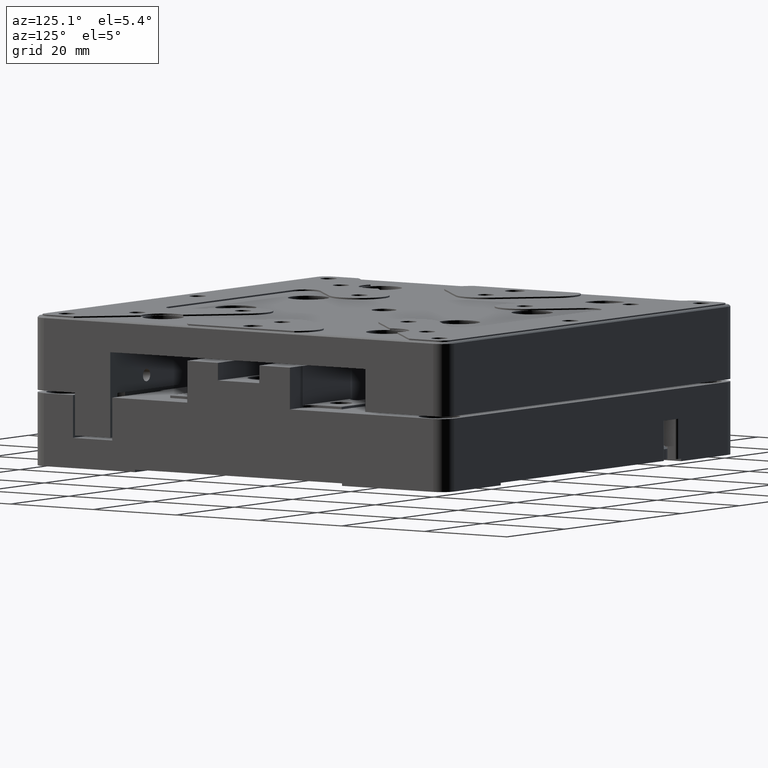
[diagram: clean part render]
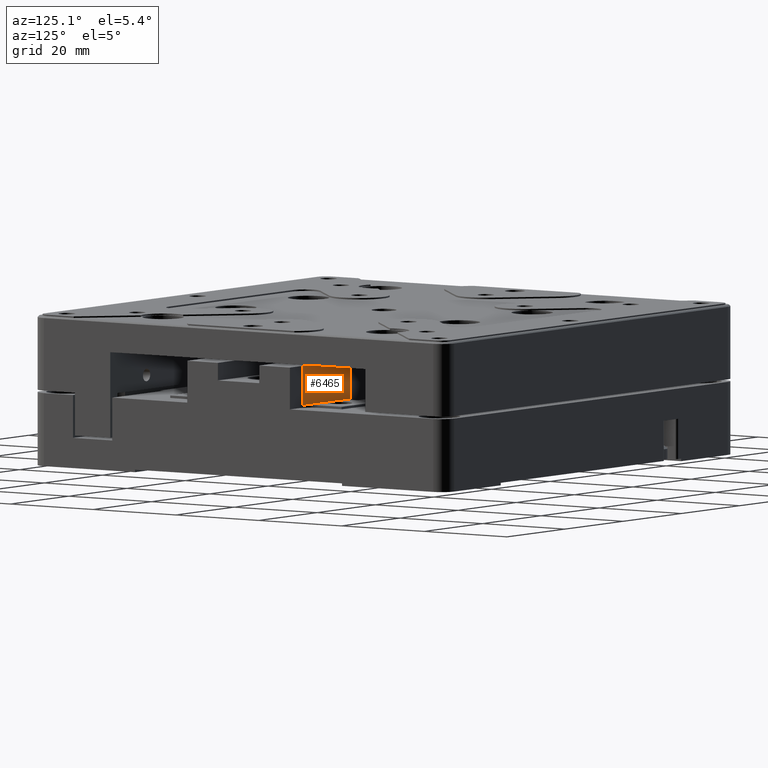
[diagram: same view with one face highlighted and labeled with its STEP entity id]
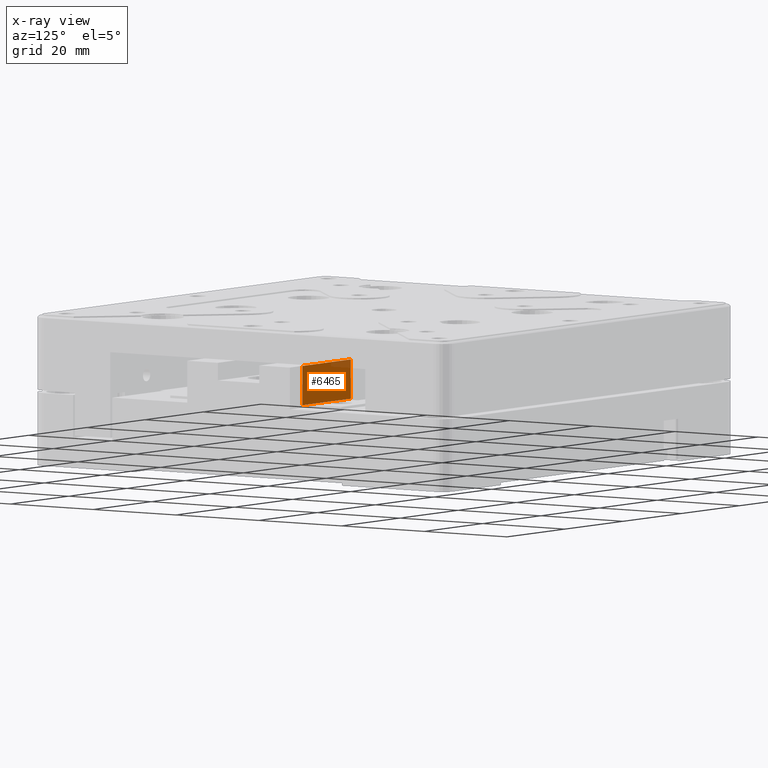
[diagram: x-ray of the same camera — body ghosted, the highlighted face saturated]
A machine part, auxiliary view. The second image highlights one B-rep face of the part: STEP entity #6465.
The next image is the same camera in x-ray: the body ghosted, the highlighted face saturated — about 7% of this face is hidden behind the body in this view.
In plain terms, the highlighted planar face has unit normal (0, 1, 0).
Its self-contained STEP definition (entity closure, byte-faithful):
#581 = DIRECTION ( 'NONE',  ( -0.000000000000000000, 0.000000000000000000, -1.000000000000000000 ) ) ;
#1058 = LINE ( 'NONE', #13630, #3857 ) ;
#1134 = DIRECTION ( 'NONE',  ( 0.000000000000000000, 1.000000000000000000, 0.000000000000000000 ) ) ;
#1491 = EDGE_CURVE ( 'NONE', #9981, #12688, #1058, .T. ) ;
#2698 = ORIENTED_EDGE ( 'NONE', *, *, #4479, .T. ) ;
#2768 = VECTOR ( 'NONE', #2811, 1000.000000000000000 ) ;
#2811 = DIRECTION ( 'NONE',  ( 0.000000000000000000, -0.000000000000000000, 1.000000000000000000 ) ) ;
#3013 = CARTESIAN_POINT ( 'NONE',  ( -50.00000000000000000, 12.50000000000000000, 0.5000000000000000000 ) ) ;
#3075 = ORIENTED_EDGE ( 'NONE', *, *, #7614, .T. ) ;
#3750 = VERTEX_POINT ( 'NONE', #4350 ) ;
#3857 = VECTOR ( 'NONE', #11144, 1000.000000000000000 ) ;
#4350 = CARTESIAN_POINT ( 'NONE',  ( 45.79999999999999005, 12.50000000000000000, 0.5000000000000002220 ) ) ;
#4479 = EDGE_CURVE ( 'NONE', #8686, #12688, #15127, .T. ) ;
#5695 = CARTESIAN_POINT ( 'NONE',  ( 45.79999999999999005, 12.50000000000000000, 0.5000000000000000000 ) ) ;
#6465 = ADVANCED_FACE ( 'NONE', ( #7425 ), #8665, .T. ) ;
#7425 = FACE_OUTER_BOUND ( 'NONE', #10955, .T. ) ;
#7614 = EDGE_CURVE ( 'NONE', #9981, #3750, #11907, .T. ) ;
#7628 = CARTESIAN_POINT ( 'NONE',  ( 29.20000000000000284, 12.50000000000000000, 8.300000000000000711 ) ) ;
#8281 = CARTESIAN_POINT ( 'NONE',  ( 45.79999999999999005, 12.50000000000000000, 8.300000000000000711 ) ) ;
#8665 = PLANE ( 'NONE',  #9654 ) ;
#8686 = VERTEX_POINT ( 'NONE', #15491 ) ;
#9310 = LINE ( 'NONE', #3013, #12791 ) ;
#9654 = AXIS2_PLACEMENT_3D ( 'NONE', #12465, #1134, #11221 ) ;
#9981 = VERTEX_POINT ( 'NONE', #8281 ) ;
#10081 = ORIENTED_EDGE ( 'NONE', *, *, #1491, .F. ) ;
#10348 = CARTESIAN_POINT ( 'NONE',  ( 29.20000000000000284, 12.50000000000000000, 0.5000000000000000000 ) ) ;
#10941 = ORIENTED_EDGE ( 'NONE', *, *, #13648, .T. ) ;
#10955 = EDGE_LOOP ( 'NONE', ( #10941, #2698, #10081, #3075 ) ) ;
#11144 = DIRECTION ( 'NONE',  ( -1.000000000000000000, -0.000000000000000000, 0.000000000000000000 ) ) ;
#11221 = DIRECTION ( 'NONE',  ( 0.000000000000000000, -0.000000000000000000, 1.000000000000000000 ) ) ;
#11907 = LINE ( 'NONE', #5695, #12071 ) ;
#12071 = VECTOR ( 'NONE', #581, 1000.000000000000000 ) ;
#12465 = CARTESIAN_POINT ( 'NONE',  ( -50.00000000000000000, 12.50000000000000000, 0.5000000000000000000 ) ) ;
#12688 = VERTEX_POINT ( 'NONE', #7628 ) ;
#12791 = VECTOR ( 'NONE', #14106, 1000.000000000000000 ) ;
#13630 = CARTESIAN_POINT ( 'NONE',  ( -50.00000000000000000, 12.50000000000000000, 8.300000000000000711 ) ) ;
#13648 = EDGE_CURVE ( 'NONE', #3750, #8686, #9310, .T. ) ;
#14106 = DIRECTION ( 'NONE',  ( -1.000000000000000000, -0.000000000000000000, 0.000000000000000000 ) ) ;
#15127 = LINE ( 'NONE', #10348, #2768 ) ;
#15491 = CARTESIAN_POINT ( 'NONE',  ( 29.20000000000000284, 12.50000000000000000, 0.5000000000000002220 ) ) ;